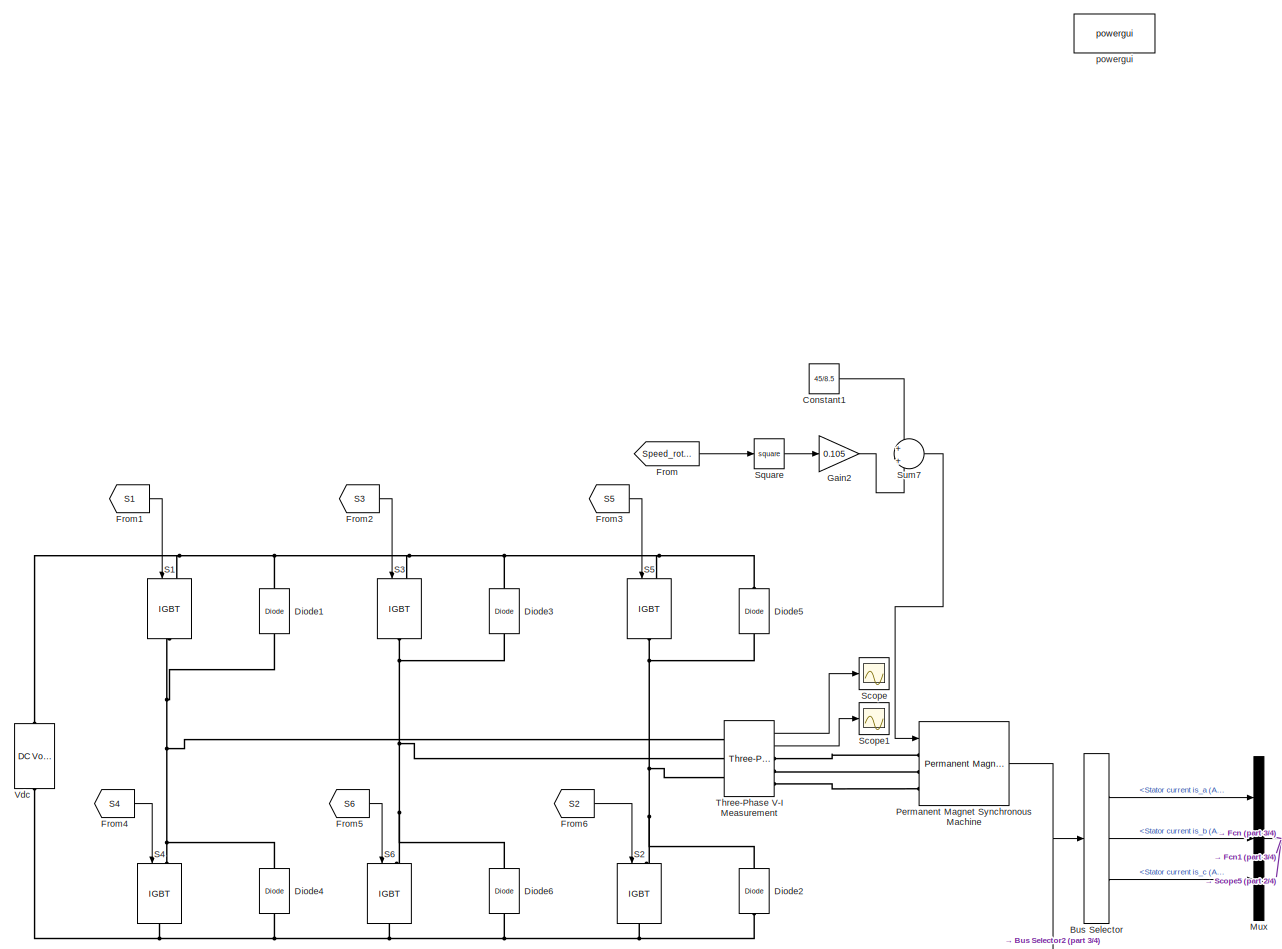
[diagram: root canvas - part 1/4, top center region]
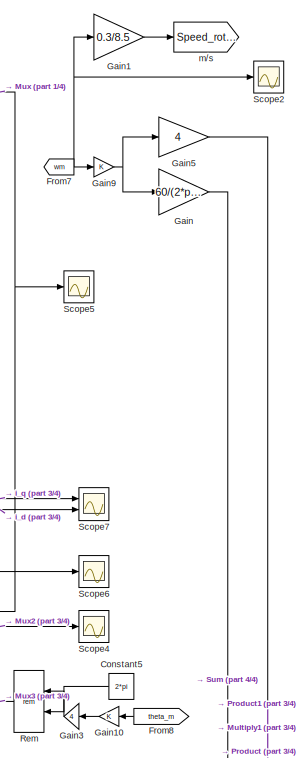
[diagram: root canvas - part 2/4, bottom right region]
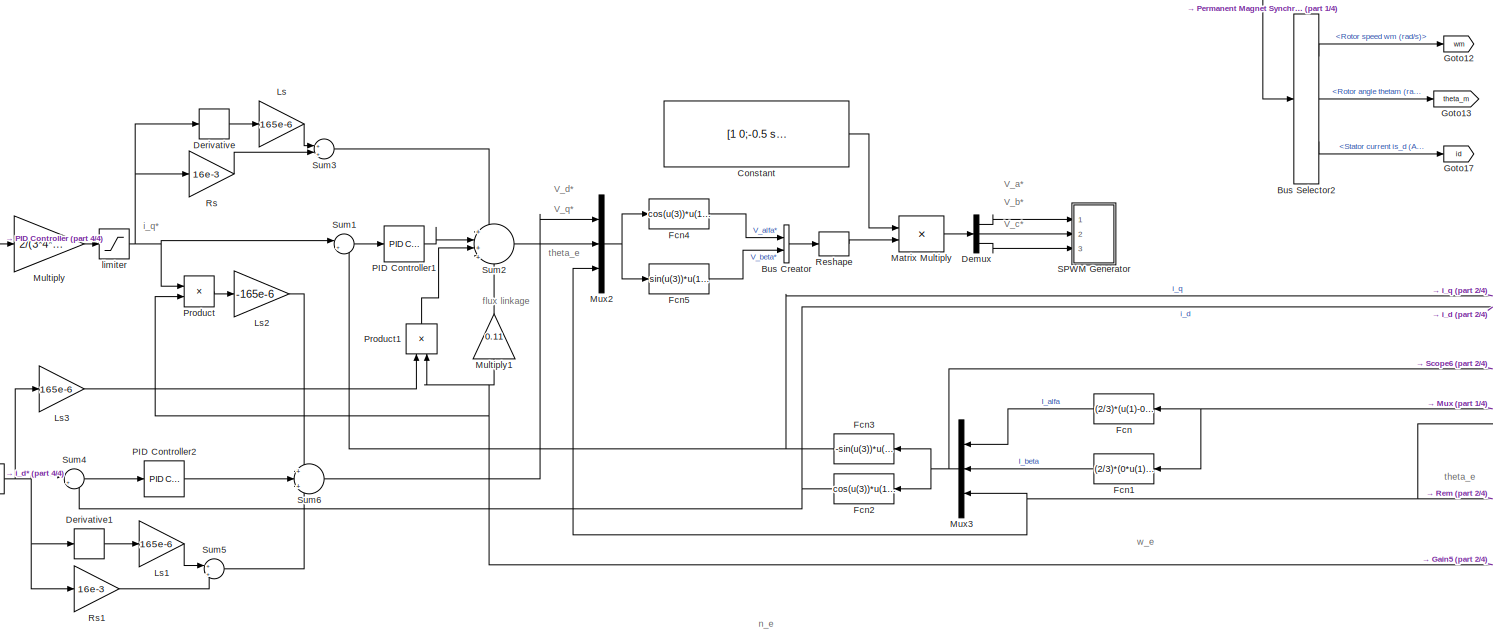
[diagram: root canvas - part 3/4, bottom center region]
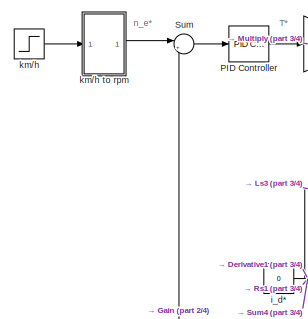
[diagram: root canvas - part 4/4, bottom left region]
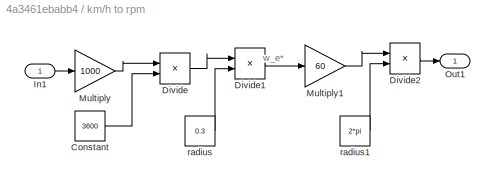
MODEL slx_4a3461ebabb4
KIND model
CONFIG AbsTol = auto
CONFIG EnableMultiTasking = off
CONFIG FixedStep = auto
CONFIG MaxStep = auto
CONFIG MinStep = auto
CONFIG RelTol = 1e-3
CONFIG SampleTimeConstraint = Unconstrained
CONFIG SolverName = FixedStepDiscrete
CONFIG StartTime = 0.0
CONFIG StopTime = 0.02
BLOCK [BusCreator] Bus Creator
  DisplayOption = bar
  InheritFromInputs = on
  Inputs = 2
  Ports = [2, 1]
BLOCK [BusSelector] Bus Selector
  OutputSignals = Stator current is_a (A),Stator current is_b (A),Stator current is_c (A)
  Ports = [1, 3]
BLOCK [BusSelector] Bus Selector2
  OutputSignals = Rotor speed wm (rad/s),Rotor angle thetam (rad),Stator current is_d (A)
  Ports = [1, 3]
BLOCK [Constant] Constant
  Value = [1 0;-0.5 sqrt(3)/2;-0.5 -sqrt(3)/2]
  VectorParams1D = off
BLOCK [Constant] Constant1
  Value = 45/8.5
BLOCK [Constant] Constant5
  NameLocation = top
  Value = 2*pi
BLOCK [Demux] Demux
  Outputs = 3
  Ports = [1, 3]
BLOCK [Derivative] Derivative
BLOCK [Derivative] Derivative1
BLOCK [Reference] Diode1  REF=powerlib/Power
Electronics/Diode
  NameLocation = right
  Ports = [0, 0, 0, 0, 0, 1, 1]
  SourceBlock = powerlib/Power\nElectronics/Diode
  SourceProductBaseCode = PS
  SourceType = Diode
BLOCK [Reference] Diode2  REF=powerlib/Power
Electronics/Diode
  NameLocation = right
  Ports = [0, 0, 0, 0, 0, 1, 1]
  SourceBlock = powerlib/Power\nElectronics/Diode
  SourceProductBaseCode = PS
  SourceType = Diode
BLOCK [Reference] Diode3  REF=powerlib/Power
Electronics/Diode
  NameLocation = right
  Ports = [0, 0, 0, 0, 0, 1, 1]
  SourceBlock = powerlib/Power\nElectronics/Diode
  SourceProductBaseCode = PS
  SourceType = Diode
BLOCK [Reference] Diode4  REF=powerlib/Power
Electronics/Diode
  NameLocation = right
  Ports = [0, 0, 0, 0, 0, 1, 1]
  SourceBlock = powerlib/Power\nElectronics/Diode
  SourceProductBaseCode = PS
  SourceType = Diode
BLOCK [Reference] Diode5  REF=powerlib/Power
Electronics/Diode
  NameLocation = right
  Ports = [0, 0, 0, 0, 0, 1, 1]
  SourceBlock = powerlib/Power\nElectronics/Diode
  SourceProductBaseCode = PS
  SourceType = Diode
BLOCK [Reference] Diode6  REF=powerlib/Power
Electronics/Diode
  NameLocation = right
  Ports = [0, 0, 0, 0, 0, 1, 1]
  SourceBlock = powerlib/Power\nElectronics/Diode
  SourceProductBaseCode = PS
  SourceType = Diode
BLOCK [Fcn] Fcn
  Expr = (2/3)*(u(1)-0.5*u(2)-0.5*u(3))
  NameLocation = top
BLOCK [Fcn] Fcn1
  Expr = (2/3)*(0*u(1)+(sqrt(3)/2)*u(2)-(sqrt(3)/2)*u(3))
  NameLocation = top
BLOCK [Fcn] Fcn2
  Expr = cos(u(3))*u(1)+sin(u(3))*u(2)
  NameLocation = top
BLOCK [Fcn] Fcn3
  Expr = -sin(u(3))*u(1)+cos(u(3))*u(2)
  NameLocation = top
BLOCK [Fcn] Fcn4
  Expr = cos(u(3))*u(1)-sin(u(3))*u(2)
BLOCK [Fcn] Fcn5
  Expr = sin(u(3))*u(1)+cos(u(3))*u(2)
BLOCK [From] From
  GotoTag = Speed_rotor
BLOCK [From] From1
  GotoTag = S1
BLOCK [From] From2
  GotoTag = S3
BLOCK [From] From3
  GotoTag = S5
BLOCK [From] From4
  GotoTag = S4
BLOCK [From] From5
  GotoTag = S6
BLOCK [From] From6
  GotoTag = S2
BLOCK [From] From7
  GotoTag = wm
BLOCK [From] From8
  GotoTag = theta_m
  NameLocation = top
BLOCK [Gain] Gain
  Gain = 60/(2*pi)
BLOCK [Gain] Gain1
  Gain = 0.3/8.5
BLOCK [Gain] Gain10
  NameLocation = top
BLOCK [Gain] Gain2
  Gain = 0.105
BLOCK [Gain] Gain3
  Gain = 4
  NameLocation = top
BLOCK [Gain] Gain5
  Gain = 4
BLOCK [Gain] Gain9
BLOCK [Goto] Goto12
  GotoTag = wm
BLOCK [Goto] Goto13
  GotoTag = theta_m
BLOCK [Goto] Goto17
  GotoTag = id
BLOCK [Gain] Ls
  Gain = 165e-6
BLOCK [Gain] Ls1
  Gain = 165e-6
BLOCK [Gain] Ls2
  Gain = -165e-6
BLOCK [Gain] Ls3
  Gain = 165e-6
BLOCK [Product] Matrix Multiply
  Multiplication = Matrix(*)
  Ports = [2, 1]
BLOCK [Gain] Multiply
  Gain = 2/(3*4*0.11)
BLOCK [Gain] Multiply1
  Gain = 0.11
  NameLocation = right
BLOCK [Mux] Mux
  DisplayOption = bar
  Inputs = 3
  Ports = [3, 1]
BLOCK [Mux] Mux2
  DisplayOption = bar
  Inputs = 3
  Ports = [3, 1]
BLOCK [Mux] Mux3
  DisplayOption = bar
  Inputs = 3
  NameLocation = top
  Ports = [3, 1]
BLOCK [Reference] PID Controller  REF=pid_lib/PID Controller
  Ports = [1, 1]
  SourceBlock = pid_lib/PID Controller
  SourceProductBaseCode = SL
  SourceType = PID 1dof
BLOCK [Reference] PID Controller1  REF=pid_lib/PID Controller
  Ports = [1, 1]
  SourceBlock = pid_lib/PID Controller
  SourceProductBaseCode = SL
  SourceType = PID 1dof
BLOCK [Reference] PID Controller2  REF=pid_lib/PID Controller
  Ports = [1, 1]
  SourceBlock = pid_lib/PID Controller
  SourceProductBaseCode = SL
  SourceType = PID 1dof
BLOCK [Reference] Permanent Magnet Synchronous Machine  REF=powerlib/Machines/Permanent Magnet
Synchronous Machine
  Ports = [1, 1, 0, 0, 0, 3]
  SourceBlock = powerlib/Machines/Permanent Magnet\nSynchronous Machine
  SourceProductBaseCode = PS
  SourceType = Permanent Magnet Synchronous Machine
BLOCK [Product] Product
  Ports = [2, 1]
BLOCK [Product] Product1
  NameLocation = right
  Ports = [2, 1]
BLOCK [Math] Rem
  NameLocation = top
  Operator = rem
  Ports = [2, 1]
  SignedPower = on
BLOCK [Reshape] Reshape
  OutputDimensionality = Column vector (2-D)
  Ports = [1, 1]
BLOCK [Gain] Rs
  Gain = 16e-3
BLOCK [Gain] Rs1
  Gain = 16e-3
BLOCK [Reference] S1  REF=powerlib/Power
Electronics/IGBT
  NameLocation = left
  Ports = [1, 0, 0, 0, 0, 1, 1]
  SourceBlock = powerlib/Power\nElectronics/IGBT
  SourceProductBaseCode = PS
  SourceType = IGBT
BLOCK [Reference] S2  REF=powerlib/Power
Electronics/IGBT
  NameLocation = left
  Ports = [1, 0, 0, 0, 0, 1, 1]
  SourceBlock = powerlib/Power\nElectronics/IGBT
  SourceProductBaseCode = PS
  SourceType = IGBT
BLOCK [Reference] S3  REF=powerlib/Power
Electronics/IGBT
  NameLocation = left
  Ports = [1, 0, 0, 0, 0, 1, 1]
  SourceBlock = powerlib/Power\nElectronics/IGBT
  SourceProductBaseCode = PS
  SourceType = IGBT
BLOCK [Reference] S4  REF=powerlib/Power
Electronics/IGBT
  NameLocation = left
  Ports = [1, 0, 0, 0, 0, 1, 1]
  SourceBlock = powerlib/Power\nElectronics/IGBT
  SourceProductBaseCode = PS
  SourceType = IGBT
BLOCK [Reference] S5  REF=powerlib/Power
Electronics/IGBT
  NameLocation = left
  Ports = [1, 0, 0, 0, 0, 1, 1]
  SourceBlock = powerlib/Power\nElectronics/IGBT
  SourceProductBaseCode = PS
  SourceType = IGBT
BLOCK [Reference] S6  REF=powerlib/Power
Electronics/IGBT
  NameLocation = left
  Ports = [1, 0, 0, 0, 0, 1, 1]
  SourceBlock = powerlib/Power\nElectronics/IGBT
  SourceProductBaseCode = PS
  SourceType = IGBT
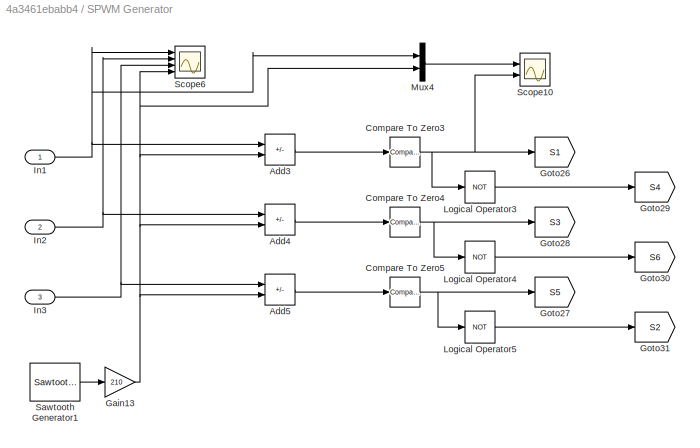
BLOCK [SubSystem] SPWM Generator
  Ports = [3]
  RequestExecContextInheritance = off
BLOCK [Sum] SPWM Generator/Add3
  IconShape = rectangular
  Inputs = +-
  Ports = [2, 1]
BLOCK [Sum] SPWM Generator/Add4
  IconShape = rectangular
  Inputs = +-
  Ports = [2, 1]
BLOCK [Sum] SPWM Generator/Add5
  IconShape = rectangular
  Inputs = +-
  Ports = [2, 1]
BLOCK [Reference] SPWM Generator/Compare To Zero3  REF=simulink/Logic and Bit
Operations/Compare
To Zero
  Ports = [1, 1]
  SourceBlock = simulink/Logic and Bit\nOperations/Compare\nTo Zero
  SourceProductBaseCode = SL
  SourceType = Compare To Zero
BLOCK [Reference] SPWM Generator/Compare To Zero4  REF=simulink/Logic and Bit
Operations/Compare
To Zero
  Ports = [1, 1]
  SourceBlock = simulink/Logic and Bit\nOperations/Compare\nTo Zero
  SourceProductBaseCode = SL
  SourceType = Compare To Zero
BLOCK [Reference] SPWM Generator/Compare To Zero5  REF=simulink/Logic and Bit
Operations/Compare
To Zero
  Ports = [1, 1]
  SourceBlock = simulink/Logic and Bit\nOperations/Compare\nTo Zero
  SourceProductBaseCode = SL
  SourceType = Compare To Zero
BLOCK [Gain] SPWM Generator/Gain13
  Gain = 210
BLOCK [Goto] SPWM Generator/Goto26
  GotoTag = S1
BLOCK [Goto] SPWM Generator/Goto27
  GotoTag = S5
BLOCK [Goto] SPWM Generator/Goto28
  GotoTag = S3
BLOCK [Goto] SPWM Generator/Goto29
  GotoTag = S4
BLOCK [Goto] SPWM Generator/Goto30
  GotoTag = S6
BLOCK [Goto] SPWM Generator/Goto31
  GotoTag = S2
BLOCK [Inport] SPWM Generator/In1
BLOCK [Inport] SPWM Generator/In2
  Port = 2
BLOCK [Inport] SPWM Generator/In3
  Port = 3
BLOCK [Logic] SPWM Generator/Logical Operator3
  AllPortsSameDT = off
  Operator = NOT
  OutDataTypeStr = boolean
  Ports = [1, 1]
BLOCK [Logic] SPWM Generator/Logical Operator4
  AllPortsSameDT = off
  Operator = NOT
  OutDataTypeStr = boolean
  Ports = [1, 1]
BLOCK [Logic] SPWM Generator/Logical Operator5
  AllPortsSameDT = off
  Operator = NOT
  OutDataTypeStr = boolean
  Ports = [1, 1]
BLOCK [Mux] SPWM Generator/Mux4
  DisplayOption = bar
  Inputs = 2
  Ports = [2, 1]
BLOCK [Reference] SPWM Generator/Sawtooth Generator1  REF=powerlib_meascontrol/Pulse & Signal
Generators/Sawtooth
Generator
  Ports = [0, 1]
  SourceBlock = powerlib_meascontrol/Pulse & Signal\nGenerators/Sawtooth\nGenerator
  SourceProductBaseCode = PS
  SourceType = Sawtooth Generator
BLOCK [Scope] SPWM Generator/Scope10
  Floating = off
  NumInputPorts = 2
  Ports = [2]
  ScopeSpecificationString = Simulink.scopes.TimeScopeBlockCfg('CurrentConfiguration', extmgr.ConfigurationSet(extmgr.Configuration('Core','General UI',true),extmgr.Configuration('Core','Source UI',true),extmgr.Configuration('Sources','WiredSimulink',true,'DataLoggingVariableName','ScopeData2'),extmgr.Configuration('Visuals','Time Domain',true,'SerializedDisplays',{struct('MinYLimReal','-2.60717','MaxYLimReal','1.42353','YLab...<+2060ch>
BLOCK [Scope] SPWM Generator/Scope6
  Floating = off
  NumInputPorts = 4
  Ports = [4]
  ScopeSpecificationString = Simulink.scopes.TimeScopeBlockCfg('CurrentConfiguration', extmgr.ConfigurationSet(extmgr.Configuration('Core','General UI',true),extmgr.Configuration('Core','Source UI',true),extmgr.Configuration('Sources','WiredSimulink',true,'DataLoggingVariableName','ScopeData3'),extmgr.Configuration('Visuals','Time Domain',true,'SerializedDisplays',{struct('MinYLimReal','-1.52487','MaxYLimReal','1.14496','YLab...<+3489ch>
BLOCK [Scope] Scope
  Floating = off
  NumInputPorts = 1
  Ports = [1]
  ScopeSpecificationString = Simulink.scopes.TimeScopeBlockCfg('CurrentConfiguration', extmgr.ConfigurationSet(extmgr.Configuration('Core','General UI',true),extmgr.Configuration('Core','Source UI',true),extmgr.Configuration('Sources','WiredSimulink',true),extmgr.Configuration('Visuals','Time Domain',true,'SerializedDisplays',{struct('MinYLimReal','-40.16603','MaxYLimReal','49.45929','YLabelReal','','MinYLimMag','0.00000','Ma...<+1511ch>
BLOCK [Scope] Scope1
  Floating = off
  NumInputPorts = 1
  Ports = [1]
  ScopeSpecificationString = Simulink.scopes.TimeScopeBlockCfg('CurrentConfiguration', extmgr.ConfigurationSet(extmgr.Configuration('Core','General UI',true),extmgr.Configuration('Core','Source UI',true),extmgr.Configuration('Sources','WiredSimulink',true,'DataLoggingVariableName','ScopeData6'),extmgr.Configuration('Visuals','Time Domain',true,'SerializedDisplays',{struct('MinYLimReal','-1.89009','MaxYLimReal','1.47611','YLab...<+1473ch>
BLOCK [Scope] Scope2
  Floating = off
  NumInputPorts = 1
  Ports = [1]
  ScopeSpecificationString = Simulink.scopes.TimeScopeBlockCfg('CurrentConfiguration', extmgr.ConfigurationSet(extmgr.Configuration('Core','General UI',true),extmgr.Configuration('Core','Source UI',true),extmgr.Configuration('Sources','WiredSimulink',true,'DataLoggingVariableName','ScopeData1'),extmgr.Configuration('Visuals','Time Domain',true,'SerializedDisplays',{struct('MinYLimReal','-0.0476','MaxYLimReal','0.00529','YLabe...<+1402ch>
BLOCK [Scope] Scope4
  Floating = off
  NumInputPorts = 1
  Ports = [1]
  ScopeSpecificationString = Simulink.scopes.TimeScopeBlockCfg('CurrentConfiguration', extmgr.ConfigurationSet(extmgr.Configuration('Core','General UI',true),extmgr.Configuration('Core','Source UI',true),extmgr.Configuration('Sources','WiredSimulink',true,'DataLoggingVariableName','ScopeData1'),extmgr.Configuration('Visuals','Time Domain',true,'SerializedDisplays',{struct('MinYLimReal','-0.00189','MaxYLimReal','0.00021','YLab...<+1387ch>
BLOCK [Scope] Scope5
  Floating = off
  NumInputPorts = 1
  Ports = [1]
  ScopeSpecificationString = Simulink.scopes.TimeScopeBlockCfg('CurrentConfiguration', extmgr.ConfigurationSet(extmgr.Configuration('Core','General UI',true),extmgr.Configuration('Core','Source UI',true),extmgr.Configuration('Sources','WiredSimulink',true,'DataLoggingVariableName','ScopeData7'),extmgr.Configuration('Visuals','Time Domain',true,'SerializedDisplays',{struct('MinYLimReal','-1.84333','MaxYLimReal','1.25547','YLab...<+1508ch>
BLOCK [Scope] Scope6
  Floating = off
  NumInputPorts = 1
  Ports = [1]
  ScopeSpecificationString = Simulink.scopes.TimeScopeBlockCfg('CurrentConfiguration', extmgr.ConfigurationSet(extmgr.Configuration('Core','General UI',true),extmgr.Configuration('Core','Source UI',true),extmgr.Configuration('Sources','WiredSimulink',true,'DataLoggingVariableName','ScopeData8'),extmgr.Configuration('Visuals','Time Domain',true),extmgr.Configuration('Tools','Plot Navigation',true),extmgr.Configuration('Tools',...<+40ch>
BLOCK [Scope] Scope7
  Floating = off
  NumInputPorts = 2
  Ports = [2]
  ScopeSpecificationString = Simulink.scopes.TimeScopeBlockCfg('CurrentConfiguration', extmgr.ConfigurationSet(extmgr.Configuration('Core','General UI',true),extmgr.Configuration('Core','Source UI',true),extmgr.Configuration('Sources','WiredSimulink',true,'DataLoggingVariableName','ScopeData9'),extmgr.Configuration('Visuals','Time Domain',true),extmgr.Configuration('Tools','Plot Navigation',true),extmgr.Configuration('Tools',...<+40ch>
BLOCK [Math] Square
  Operator = square
  Ports = [1, 1]
BLOCK [Sum] Sum
  Inputs = |+-
  Ports = [2, 1]
BLOCK [Sum] Sum1
  Inputs = |+-
  Ports = [2, 1]
BLOCK [Sum] Sum2
  Inputs = +|+|+|+
  Ports = [4, 1]
BLOCK [Sum] Sum3
  Inputs = +|+
  Ports = [2, 1]
BLOCK [Sum] Sum4
  Inputs = |+-
  Ports = [2, 1]
BLOCK [Sum] Sum5
  Inputs = +|+
  Ports = [2, 1]
BLOCK [Sum] Sum6
  Inputs = +|+|+
  Ports = [3, 1]
BLOCK [Sum] Sum7
  Inputs = +|+
  Ports = [2, 1]
BLOCK [Reference] Three-Phase V-I Measurement  REF=powerlib/Measurements/Three-Phase
V-I Measurement
  Ports = [0, 2, 0, 0, 0, 3, 3]
  SourceBlock = powerlib/Measurements/Three-Phase\nV-I Measurement
  SourceProductBaseCode = PS
  SourceType = Three-Phase VI Measurement
BLOCK [Reference] Vdc  REF=powerlib/Electrical
Sources/DC Voltage Source
  NameLocation = right
  Ports = [0, 0, 0, 0, 0, 1, 1]
  SourceBlock = powerlib/Electrical\nSources/DC Voltage Source
  SourceProductBaseCode = PS
  SourceType = DC Voltage Source
BLOCK [Constant] i_d*
  Value = 0
BLOCK [Step] km//h
  After = 40
  Before = 35
  SampleTime = 0
  Time = 5
BLOCK [SubSystem] km//h to rpm
  Ports = [1, 1]
  RequestExecContextInheritance = off
BLOCK [Constant] km//h to rpm/Constant
  Value = 3600
BLOCK [Product] km//h to rpm/Divide
  Inputs = */
  Ports = [2, 1]
BLOCK [Product] km//h to rpm/Divide1
  Inputs = */
  Ports = [2, 1]
BLOCK [Product] km//h to rpm/Divide2
  Inputs = */
  Ports = [2, 1]
BLOCK [Inport] km//h to rpm/In1
BLOCK [Gain] km//h to rpm/Multiply
  Gain = 1000
BLOCK [Gain] km//h to rpm/Multiply1
  Gain = 60
BLOCK [Outport] km//h to rpm/Out1
BLOCK [Constant] km//h to rpm/radius
  Value = 0.3
BLOCK [Constant] km//h to rpm/radius1
  Value = 2*pi
BLOCK [Saturate] limiter
  LowerLimit = 0
  UpperLimit = 500
BLOCK [Goto] m//s
  GotoTag = Speed_rotor
BLOCK [Reference] powergui  REF=powerlib/powergui
  Ports = []
  Priority = 1
  SourceBlock = powerlib/powergui
  SourceProductBaseCode = PS
  SourceType = PSB option menu block
ANNOTATION (root): T*
ANNOTATION (root): V_a*
ANNOTATION (root): V_b*
ANNOTATION (root): V_c*
ANNOTATION (root): V_d*
ANNOTATION (root): V_q*
ANNOTATION (root): flux linkage
ANNOTATION (root): i_q*
ANNOTATION (root): n_e
ANNOTATION (root): n_e*
ANNOTATION (root): theta_e
ANNOTATION (root): w_e
ANNOTATION km//h to rpm: w_e*
LINE Bus Creator:1 -> Reshape:1
LINE Bus Selector2:1 -> Goto12:1
LINE Bus Selector2:2 -> Goto13:1
LINE Bus Selector2:3 -> Goto17:1
LINE Bus Selector:1 -> Mux:1
LINE Bus Selector:2 -> Mux:2
LINE Bus Selector:3 -> Mux:3
LINE Constant1:1 -> Sum7:1
LINE Constant5:1 -> Rem:2
LINE Constant:1 -> Matrix Multiply:1
LINE Demux:1 -> SPWM Generator:1
LINE Demux:2 -> SPWM Generator:2
LINE Demux:3 -> SPWM Generator:3
LINE Derivative1:1 -> Ls1:1
LINE Derivative:1 -> Ls:1
LINE Fcn1:1 -> Mux3:2
NET Fcn2:1 -> Scope7:2, Sum4:2
NET Fcn3:1 -> Scope7:1, Sum1:2
LINE Fcn4:1 -> Bus Creator:1
LINE Fcn5:1 -> Bus Creator:2
LINE Fcn:1 -> Mux3:1
LINE From1:1 -> S1:1
LINE From2:1 -> S3:1
LINE From3:1 -> S5:1
LINE From4:1 -> S4:1
LINE From5:1 -> S6:1
LINE From6:1 -> S2:1
NET From7:1 -> Gain1:1, Gain9:1, Scope2:1
LINE From8:1 -> Gain10:1
LINE From:1 -> Square:1
LINE Gain10:1 -> Gain3:1
LINE Gain1:1 -> m//s:1
LINE Gain2:1 -> Sum7:2
LINE Gain3:1 -> Rem:1
NET Gain5:1 -> Multiply1:1, Product1:2, Product:2
NET Gain9:1 -> Gain5:1, Gain:1
LINE Gain:1 -> Sum:2
LINE Ls1:1 -> Sum5:1
LINE Ls2:1 -> Sum6:1
LINE Ls3:1 -> Product1:1
LINE Ls:1 -> Sum3:1
LINE Matrix Multiply:1 -> Demux:1
LINE Multiply1:1 -> Sum2:4
LINE Multiply:1 -> limiter:1
NET Mux2:1 -> Fcn4:1, Fcn5:1
NET Mux3:1 -> Fcn2:1, Fcn3:1, Scope6:1
NET Mux:1 -> Fcn1:1, Fcn:1, Scope5:1
LINE PID Controller1:1 -> Sum2:2
LINE PID Controller2:1 -> Sum6:2
LINE PID Controller:1 -> Multiply:1
NET Permanent Magnet Synchronous Machine:1 -> Bus Selector2:1, Bus Selector:1
LINE Product1:1 -> Sum2:3
LINE Product:1 -> Ls2:1
NET Rem:1 -> Mux2:3, Mux3:3, Scope4:1
LINE Reshape:1 -> Matrix Multiply:2
LINE Rs1:1 -> Sum5:2
LINE Rs:1 -> Sum3:2
LINE SPWM Generator/Add3:1 -> SPWM Generator/Compare To Zero3:1
LINE SPWM Generator/Add4:1 -> SPWM Generator/Compare To Zero4:1
LINE SPWM Generator/Add5:1 -> SPWM Generator/Compare To Zero5:1
NET SPWM Generator/Compare To Zero3:1 -> SPWM Generator/Goto26:1, SPWM Generator/Logical Operator3:1, SPWM Generator/Scope10:2
NET SPWM Generator/Compare To Zero4:1 -> SPWM Generator/Goto28:1, SPWM Generator/Logical Operator4:1
NET SPWM Generator/Compare To Zero5:1 -> SPWM Generator/Goto27:1, SPWM Generator/Logical Operator5:1
NET SPWM Generator/Gain13:1 -> SPWM Generator/Add3:2, SPWM Generator/Add4:2, SPWM Generator/Add5:2, SPWM Generator/Mux4:2, SPWM Generator/Scope6:4
NET SPWM Generator/In1:1 -> SPWM Generator/Add3:1, SPWM Generator/Mux4:1, SPWM Generator/Scope6:1
NET SPWM Generator/In2:1 -> SPWM Generator/Add4:1, SPWM Generator/Scope6:2
NET SPWM Generator/In3:1 -> SPWM Generator/Add5:1, SPWM Generator/Scope6:3
LINE SPWM Generator/Logical Operator3:1 -> SPWM Generator/Goto29:1
LINE SPWM Generator/Logical Operator4:1 -> SPWM Generator/Goto30:1
LINE SPWM Generator/Logical Operator5:1 -> SPWM Generator/Goto31:1
LINE SPWM Generator/Mux4:1 -> SPWM Generator/Scope10:1
LINE SPWM Generator/Sawtooth Generator1:1 -> SPWM Generator/Gain13:1
LINE Square:1 -> Gain2:1
LINE Sum1:1 -> PID Controller1:1
LINE Sum2:1 -> Mux2:2
LINE Sum3:1 -> Sum2:1
LINE Sum4:1 -> PID Controller2:1
LINE Sum5:1 -> Sum6:3
LINE Sum6:1 -> Mux2:1
LINE Sum7:1 -> Permanent Magnet Synchronous Machine:1
LINE Sum:1 -> PID Controller:1
LINE Three-Phase V-I Measurement:1 -> Scope:1
LINE Three-Phase V-I Measurement:2 -> Scope1:1
NET i_d*:1 -> Derivative1:1, Ls3:1, Rs1:1, Sum4:1
LINE km//h to rpm/Constant:1 -> km//h to rpm/Divide:2
LINE km//h to rpm/Divide1:1 -> km//h to rpm/Multiply1:1
LINE km//h to rpm/Divide2:1 -> km//h to rpm/Out1:1
LINE km//h to rpm/Divide:1 -> km//h to rpm/Divide1:1
LINE km//h to rpm/In1:1 -> km//h to rpm/Multiply:1
LINE km//h to rpm/Multiply1:1 -> km//h to rpm/Divide2:1
LINE km//h to rpm/Multiply:1 -> km//h to rpm/Divide:1
LINE km//h to rpm/radius1:1 -> km//h to rpm/Divide2:2
LINE km//h to rpm/radius:1 -> km//h to rpm/Divide1:2
LINE km//h to rpm:1 -> Sum:1
LINE km//h:1 -> km//h to rpm:1
NET limiter:1 -> Derivative:1, Product:1, Rs:1, Sum1:1
PNET net1: Diode1:LConn1 -- Diode4:RConn1 -- S1:RConn1 -- S4:LConn1 -- Three-Phase V-I Measurement:LConn1
PNET net2: Diode1:RConn1 -- Diode3:RConn1 -- Diode5:RConn1 -- S1:LConn1 -- S3:LConn1 -- S5:LConn1 -- Vdc:RConn1
PNET net3: Diode2:LConn1 -- Diode4:LConn1 -- Diode6:LConn1 -- S2:RConn1 -- S4:RConn1 -- S6:RConn1 -- Vdc:LConn1
PNET net4: Diode2:RConn1 -- Diode5:LConn1 -- S2:LConn1 -- S5:RConn1 -- Three-Phase V-I Measurement:LConn3
PNET net5: Diode3:LConn1 -- Diode6:RConn1 -- S3:RConn1 -- S6:LConn1 -- Three-Phase V-I Measurement:LConn2
PLINE Permanent Magnet Synchronous Machine:LConn1 -- Three-Phase V-I Measurement:RConn1
PLINE Permanent Magnet Synchronous Machine:LConn2 -- Three-Phase V-I Measurement:RConn2
PLINE Permanent Magnet Synchronous Machine:LConn3 -- Three-Phase V-I Measurement:RConn3
note: NET lines group one-source signal fan-out (src -> all destinations, sorted); 1:1 wires keep LINE; PNET lines group multi-terminal physical nets as a canonical sorted terminal list (undirected conserving connections); 2-terminal nets keep the pairwise PLINE form
